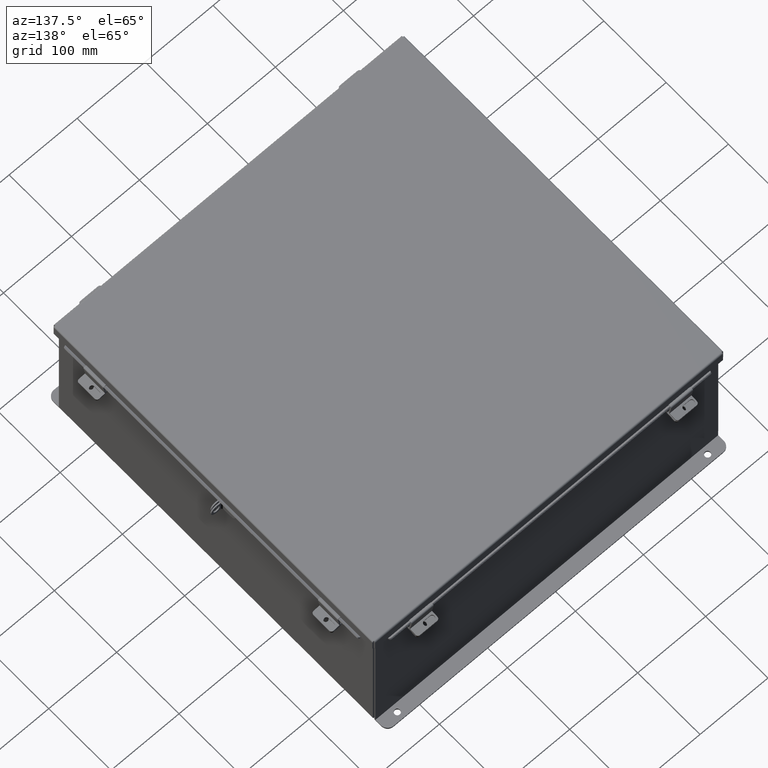
[diagram: clean part render]
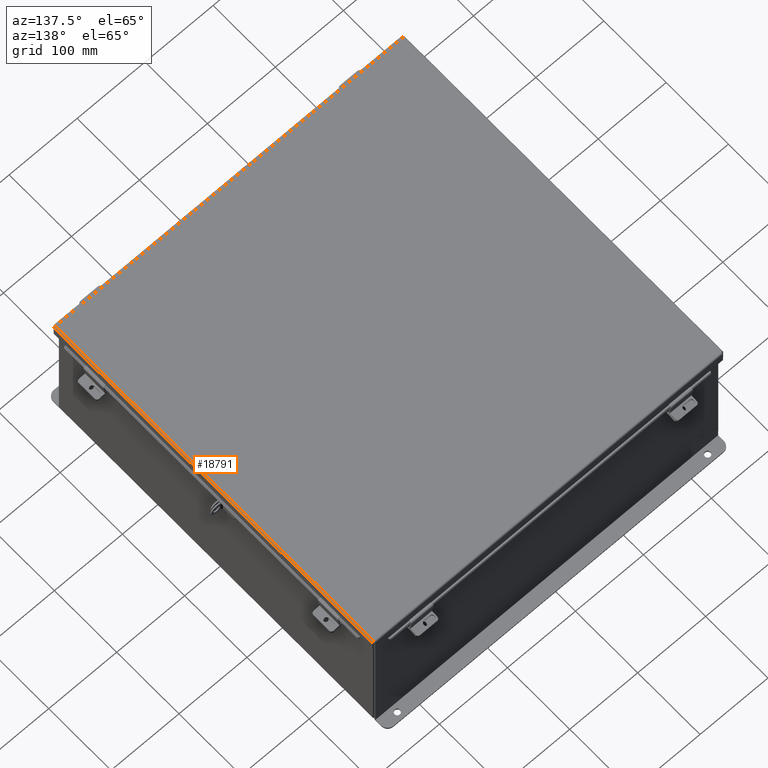
[diagram: same view with one face highlighted and labeled with its STEP entity id]
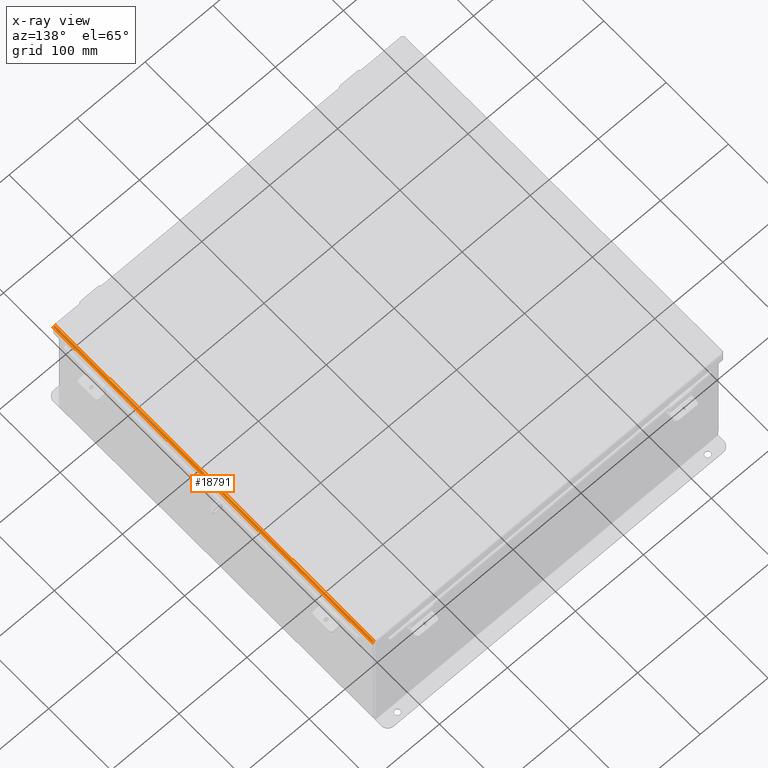
[diagram: x-ray of the same camera — body ghosted, the highlighted face saturated]
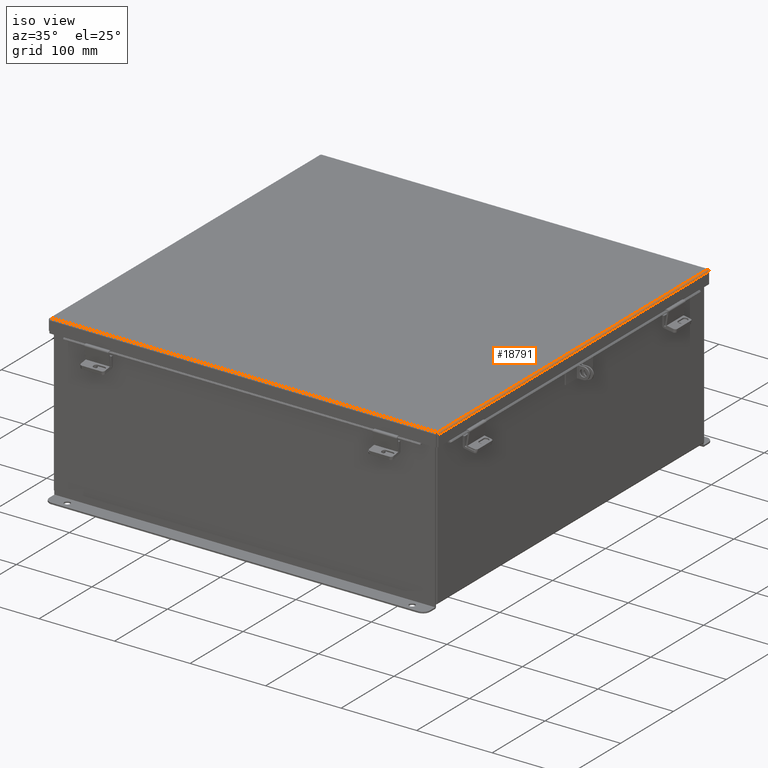
[diagram: same view with one face highlighted and labeled with its STEP entity id]
A machine part, auxiliary view. The second image highlights one B-rep face of the part: STEP entity #18791.
The next image is the same camera in x-ray: the body ghosted, the highlighted face saturated — about 0% of this face is hidden behind the body in this view.
A second angle (iso view) of the same face is appended — the face is thin or edge-on in the first view.
In plain terms, the highlighted cylindrical surface (edge-blend (fillet) strip) has radius 2.2276 mm, axis along (-0, -1, -0).
Its self-contained STEP definition (entity closure, byte-faithful):
#385 = CARTESIAN_POINT ( 'NONE',  ( -10.12244574734179500, 10.07102038841172500, -0.05713078207831171600 ) ) ;
#444 = CARTESIAN_POINT ( 'NONE',  ( -10.11271738457852400, 10.07052631072937700, -0.06363106625865969100 ) ) ;
#743 = CARTESIAN_POINT ( 'NONE',  ( -10.06854999999999700, 10.06855000000000000, -0.07470000000000015500 ) ) ;
#1217 = DIRECTION ( 'NONE',  ( -2.258600338820354400E-033, -1.000000000000000000, 0.0000000000000000000 ) ) ;
#1498 = CARTESIAN_POINT ( 'NONE',  ( -10.06854999999999700, -10.06854999999999700, -0.07469999999999142600 ) ) ;
#1501 = ORIENTED_EDGE ( 'NONE', *, *, #12635, .F. ) ;
#1509 = CARTESIAN_POINT ( 'NONE',  ( -10.06854999999999700, -10.07447893218813200, -0.07469999999999142600 ) ) ;
#1512 = CARTESIAN_POINT ( 'NONE',  ( -10.15624999999999600, 10.07447893218813600, 0.01300000000000775700 ) ) ;
#1592 = CARTESIAN_POINT ( 'NONE',  ( -10.08002990315498900, 10.06904407768234400, -0.07469999999999124600 ) ) ;
#1791 = CARTESIAN_POINT ( 'NONE',  ( -10.06854999999999700, -10.06854999999999700, -0.07469999999999142600 ) ) ;
#2100 = EDGE_CURVE ( 'NONE', #4740, #5735, #15082, .T. ) ;
#3186 = CARTESIAN_POINT ( 'NONE',  ( -10.15624999999999600, -10.07398485450578800, 0.001520096845015843000 ) ) ;
#4192 = LINE ( 'NONE', #1509, #17497 ) ;
#4719 = CARTESIAN_POINT ( 'NONE',  ( -10.06854999999999700, -10.07447893218813200, 0.01300000000000885000 ) ) ;
#4740 = VERTEX_POINT ( 'NONE', #16316 ) ;
#4940 = CARTESIAN_POINT ( 'NONE',  ( -10.15624999999999600, -10.07447893218813200, 0.01300000000000010700 ) ) ;
#5735 = VERTEX_POINT ( 'NONE', #12157 ) ;
#5811 = CARTESIAN_POINT ( 'NONE',  ( -10.15624999999999600, 10.07398485450579500, 0.001520096845015845800 ) ) ;
#6692 = CARTESIAN_POINT ( 'NONE',  ( -10.15396740374381300, -10.07349077682344600, -0.009955289458300301300 ) ) ;
#7600 = CARTESIAN_POINT ( 'NONE',  ( -10.15624999999999600, 10.15625000000000200, 0.01300000000000010700 ) ) ;
#8205 = CARTESIAN_POINT ( 'NONE',  ( -10.15396740374381000, 10.07349077682344800, -0.009955289458300294400 ) ) ;
#8424 = CARTESIAN_POINT ( 'NONE',  ( -10.13868078207831800, -10.07200854377640700, -0.04089574734179138300 ) ) ;
#8583 = LINE ( 'NONE', #7600, #21842 ) ;
#9702 = EDGE_CURVE ( 'NONE', #15068, #5735, #8583, .T. ) ;
#10152 = CARTESIAN_POINT ( 'NONE',  ( -10.11271738457852500, -10.07052631072937600, -0.06363106625865969100 ) ) ;
#10292 = ORIENTED_EDGE ( 'NONE', *, *, #2100, .F. ) ;
#11892 = CARTESIAN_POINT ( 'NONE',  ( -10.08002990315498900, -10.06904407768234000, -0.07469999999999126000 ) ) ;
#11964 = DIRECTION ( 'NONE',  ( 2.258600338820354400E-033, 1.000000000000000000, -0.0000000000000000000 ) ) ;
#12157 = CARTESIAN_POINT ( 'NONE',  ( -10.15624999999999600, 10.07447893218813600, 0.01300000000000775700 ) ) ;
#12463 = CYLINDRICAL_SURFACE ( 'NONE', #21926, 0.08770000000000026400 ) ;
#12635 = EDGE_CURVE ( 'NONE', #17035, #4740, #4192, .T. ) ;
#12733 = CARTESIAN_POINT ( 'NONE',  ( -10.09150528945830800, 10.06953815536469100, -0.07241740374380253900 ) ) ;
#14431 = EDGE_CURVE ( 'NONE', #15068, #17035, #21146, .T. ) ;
#15068 = VERTEX_POINT ( 'NONE', #19155 ) ;
#15082 = B_SPLINE_CURVE_WITH_KNOTS ( 'NONE', 3,
 ( #743, #1592, #12733, #444, #385, #16913, #22407, #8205, #5811, #1512 ),
 .UNSPECIFIED., .F., .F.,
 ( 4, 2, 2, 2, 4 ),
 ( 0.0000000000000000000, 0.2500000000000000000, 0.5000000000000000000, 0.7500000000000000000, 1.000000000000000000 ),
 .UNSPECIFIED. ) ;
#16316 = CARTESIAN_POINT ( 'NONE',  ( -10.06854999999999700, 10.06855000000000000, -0.07470000000000015500 ) ) ;
#16837 = DIRECTION ( 'NONE',  ( -1.000000000000000000, 0.0000000000000000000, -3.577373637655407700E-015 ) ) ;
#16913 = CARTESIAN_POINT ( 'NONE',  ( -10.13868078207831800, 10.07200854377641100, -0.04089574734179139700 ) ) ;
#17035 = VERTEX_POINT ( 'NONE', #1791 ) ;
#17497 = VECTOR ( 'NONE', #11964, 39.37007874015748100 ) ;
#18784 = CARTESIAN_POINT ( 'NONE',  ( -10.14518106625866200, -10.07250262145874900, -0.03116738457851925300 ) ) ;
#18791 = ADVANCED_FACE ( 'NONE', ( #21665 ), #12463, .T. ) ;
#19155 = CARTESIAN_POINT ( 'NONE',  ( -10.15624999999999600, -10.07447893218813200, 0.01300000000000010700 ) ) ;
#19687 = ORIENTED_EDGE ( 'NONE', *, *, #9702, .T. ) ;
#20499 = CARTESIAN_POINT ( 'NONE',  ( -10.12244574734179500, -10.07102038841172100, -0.05713078207831170900 ) ) ;
#21146 = B_SPLINE_CURVE_WITH_KNOTS ( 'NONE', 3,
 ( #4940, #3186, #6692, #18784, #8424, #20499, #10152, #22252, #11892, #1498 ),
 .UNSPECIFIED., .F., .F.,
 ( 4, 2, 2, 2, 4 ),
 ( 0.0000000000000000000, 0.2500000000000000000, 0.5000000000000000000, 0.7500000000000000000, 1.000000000000000000 ),
 .UNSPECIFIED. ) ;
#21347 = DIRECTION ( 'NONE',  ( 2.258600338820354400E-033, 1.000000000000000000, -0.0000000000000000000 ) ) ;
#21564 = ORIENTED_EDGE ( 'NONE', *, *, #14431, .F. ) ;
#21665 = FACE_OUTER_BOUND ( 'NONE', #22346, .T. ) ;
#21842 = VECTOR ( 'NONE', #21347, 39.37007874015748100 ) ;
#21926 = AXIS2_PLACEMENT_3D ( 'NONE', #4719, #1217, #16837 ) ;
#22252 = CARTESIAN_POINT ( 'NONE',  ( -10.09150528945830600, -10.06953815536468300, -0.07241740374380253900 ) ) ;
#22346 = EDGE_LOOP ( 'NONE', ( #1501, #21564, #19687, #10292 ) ) ;
#22407 = CARTESIAN_POINT ( 'NONE',  ( -10.14518106625866700, 10.07250262145875700, -0.03116738457851926000 ) ) ;